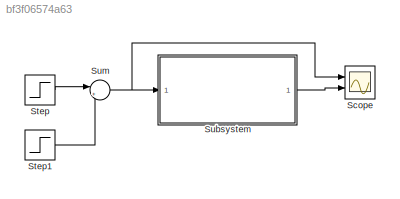
MODEL slx_bf3f06574a63
KIND model
CONFIG AbsTol = auto
CONFIG EnableMultiTasking = off
CONFIG FixedStep = 1/1000
CONFIG MaxStep = auto
CONFIG MinStep = auto
CONFIG RelTol = 1e-3
CONFIG SampleTimeConstraint = Unconstrained
CONFIG Solver = FixedStepAuto
CONFIG SolverName = FixedStepAuto
CONFIG StartTime = 0.0
CONFIG StopTime = 50
BLOCK [Scope] Scope
  Floating = off
  NumInputPorts = 2
  Ports = [2]
  ScopeSpecificationString = Simulink.scopes.TimeScopeBlockCfg('CurrentConfiguration', extmgr.ConfigurationSet(extmgr.Configuration('Core','General UI',true),extmgr.Configuration('Core','Source UI',true),extmgr.Configuration('Sources','WiredSimulink',true),extmgr.Configuration('Visuals','Time Domain',true,'SerializedDisplays',{struct('MinYLimReal','-0.25','MaxYLimReal','2.25','YLabelReal','','MinYLimMag','0.00000','MaxYLimMag...<+1416ch>
BLOCK [Step] Step
  SampleTime = 0
  Time = 5
BLOCK [Step] Step1
  After = -1
  SampleTime = 0
  Time = 30
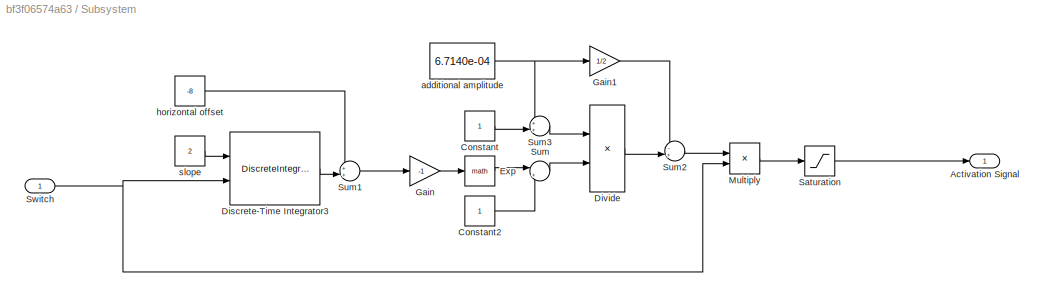
BLOCK [SubSystem] Subsystem
  Ports = [1, 1]
  RequestExecContextInheritance = off
BLOCK [Outport] Subsystem/Activation Signal
  IconDisplay = Port number
BLOCK [Constant] Subsystem/Constant
BLOCK [Constant] Subsystem/Constant2
BLOCK [DiscreteIntegrator] Subsystem/Discrete-Time Integrator3
  ExternalReset = rising
  ICPrevOutput = DiscIntNeverNeededParam
  ICPrevScaledInput = DiscIntNeverNeededParam
  InitialConditionSetting = Auto
  IntegratorMethod = Integration: Trapezoidal
  LowerSaturationLimit = 0
  Ports = [2, 1]
  SampleTime = -1
  UpperSaturationLimit = 1
BLOCK [Product] Subsystem/Divide
  InputSameDT = off
  Inputs = */
  OutDataTypeStr = Inherit: Inherit via internal rule
  Ports = [2, 1]
  RndMeth = Floor
  SaturateOnIntegerOverflow = off
BLOCK [Math] Subsystem/Exp
  Ports = [1, 1]
BLOCK [Gain] Subsystem/Gain
  Gain = -1
  OutDataTypeStr = Inherit: Inherit via internal rule
  ParamDataTypeStr = Inherit: Inherit via internal rule
  SaturateOnIntegerOverflow = off
BLOCK [Gain] Subsystem/Gain1
  Gain = 1/2
  OutDataTypeStr = Inherit: Inherit via internal rule
  ParamDataTypeStr = Inherit: Inherit via internal rule
  SaturateOnIntegerOverflow = off
BLOCK [Product] Subsystem/Multiply
  InputSameDT = off
  OutDataTypeStr = Inherit: Inherit via internal rule
  Ports = [2, 1]
  RndMeth = Floor
  SaturateOnIntegerOverflow = off
BLOCK [Saturate] Subsystem/Saturation
  InputPortMap = u0
  LowerLimit = 0
  Ports = [1, 1]
  UpperLimit = 1
BLOCK [Sum] Subsystem/Sum
  IconShape = round
  InputSameDT = off
  Inputs = |++
  OutDataTypeStr = Inherit: Inherit via internal rule
  Ports = [2, 1]
  SaturateOnIntegerOverflow = off
BLOCK [Sum] Subsystem/Sum1
  IconShape = round
  InputSameDT = off
  Inputs = ++|
  OutDataTypeStr = Inherit: Inherit via internal rule
  Ports = [2, 1]
  SaturateOnIntegerOverflow = off
BLOCK [Sum] Subsystem/Sum2
  IconShape = round
  InputSameDT = off
  Inputs = -+|
  OutDataTypeStr = Inherit: Inherit via internal rule
  Ports = [2, 1]
  SaturateOnIntegerOverflow = off
BLOCK [Sum] Subsystem/Sum3
  IconShape = round
  InputSameDT = off
  Inputs = ++|
  OutDataTypeStr = Inherit: Inherit via internal rule
  Ports = [2, 1]
  SaturateOnIntegerOverflow = off
BLOCK [Inport] Subsystem/Switch
  IconDisplay = Port number
BLOCK [Constant] Subsystem/additional amplitude
  Value = 6.7140e-04
BLOCK [Constant] Subsystem/horizontal offset
  Value = -8
BLOCK [Constant] Subsystem/slope
  Value = 2
BLOCK [Sum] Sum
  IconShape = round
  InputSameDT = off
  Inputs = |++
  OutDataTypeStr = Inherit: Inherit via internal rule
  Ports = [2, 1]
  SaturateOnIntegerOverflow = off
LINE Step1:1 -> Sum:2
LINE Step:1 -> Sum:1
LINE Subsystem/Constant2:1 -> Subsystem/Sum:2
LINE Subsystem/Constant:1 -> Subsystem/Sum3:2
LINE Subsystem/Discrete-Time Integrator3:1 -> Subsystem/Sum1:2
LINE Subsystem/Divide:1 -> Subsystem/Sum2:2
LINE Subsystem/Exp:1 -> Subsystem/Sum:1
LINE Subsystem/Gain1:1 -> Subsystem/Sum2:1
LINE Subsystem/Gain:1 -> Subsystem/Exp:1
LINE Subsystem/Multiply:1 -> Subsystem/Saturation:1
LINE Subsystem/Saturation:1 -> Subsystem/Activation Signal:1
LINE Subsystem/Sum1:1 -> Subsystem/Gain:1
LINE Subsystem/Sum2:1 -> Subsystem/Multiply:1
LINE Subsystem/Sum3:1 -> Subsystem/Divide:1
LINE Subsystem/Sum:1 -> Subsystem/Divide:2
NET Subsystem/Switch:1 -> Subsystem/Discrete-Time Integrator3:2, Subsystem/Multiply:2
NET Subsystem/additional amplitude:1 -> Subsystem/Gain1:1, Subsystem/Sum3:1
LINE Subsystem/horizontal offset:1 -> Subsystem/Sum1:1
LINE Subsystem/slope:1 -> Subsystem/Discrete-Time Integrator3:1
LINE Subsystem:1 -> Scope:2
NET Sum:1 -> Scope:1, Subsystem:1
note: NET lines group one-source signal fan-out (src -> all destinations, sorted); 1:1 wires keep LINE
